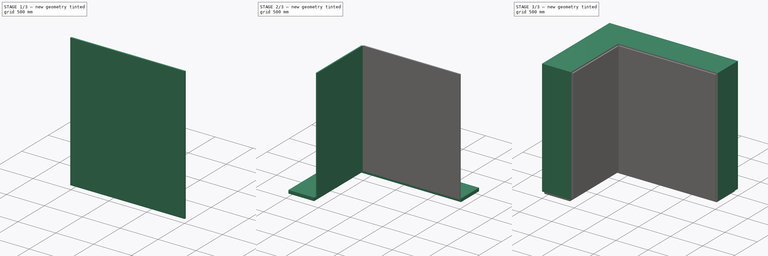
[diagram: build sequence overview — one tinted view per stage of 3, left to right]
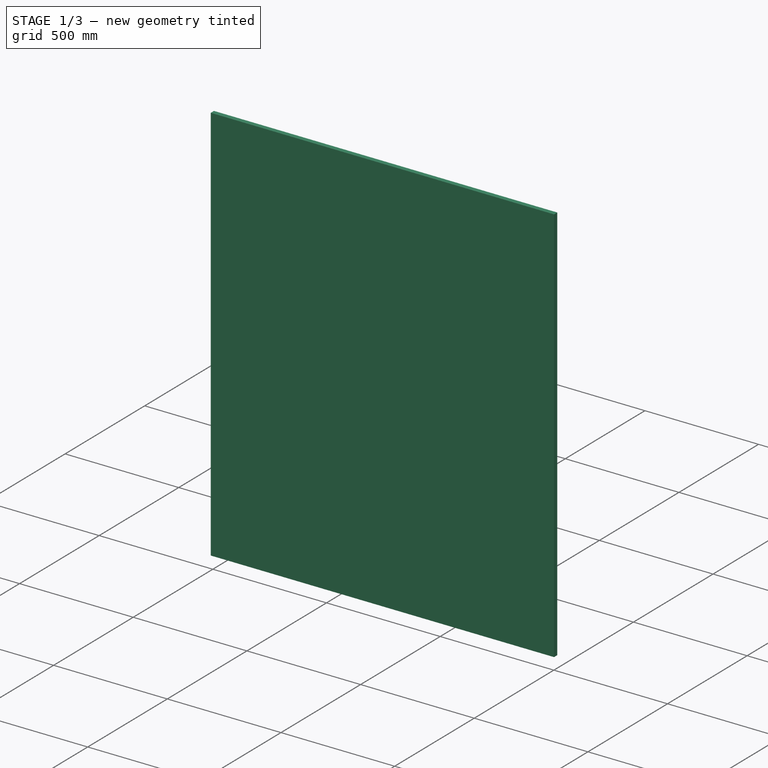
[diagram: stage 1 of 3 — iso view after this stage's code; geometry added in this stage tinted green]
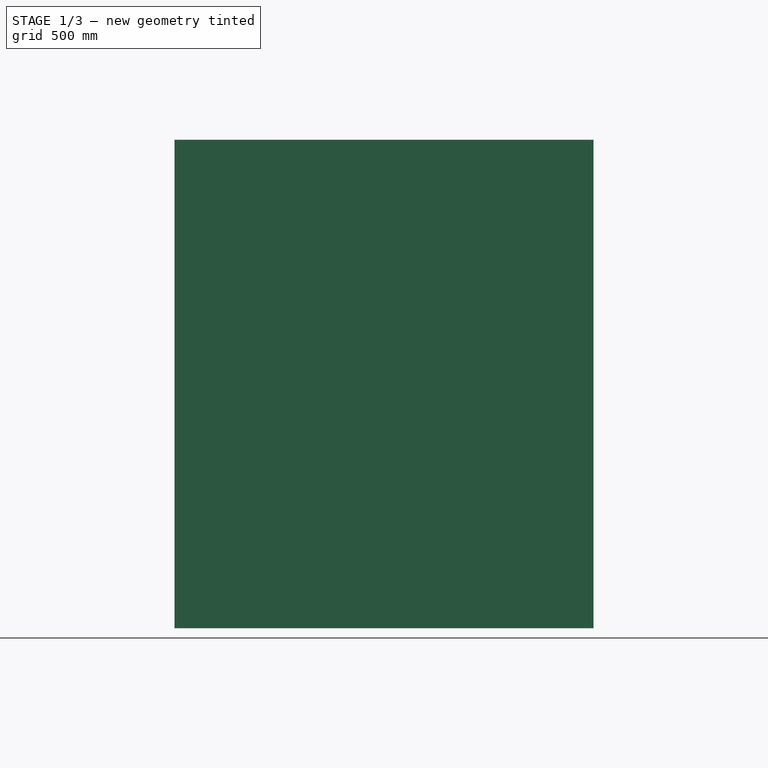
[diagram: stage 1 of 3 — front view after this stage's code; geometry added in this stage tinted green]
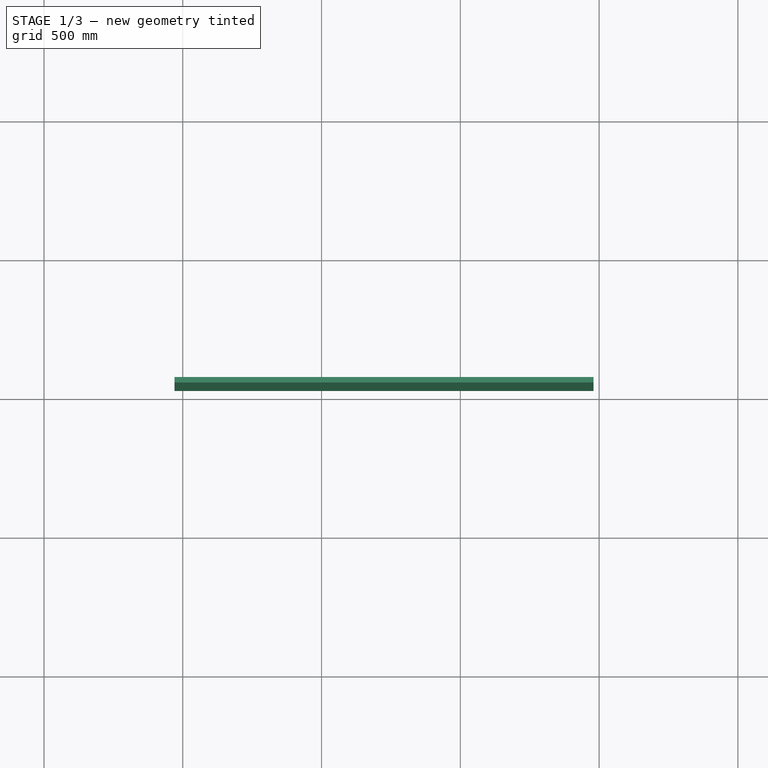
[diagram: stage 1 of 3 — top view after this stage's code; geometry added in this stage tinted green]
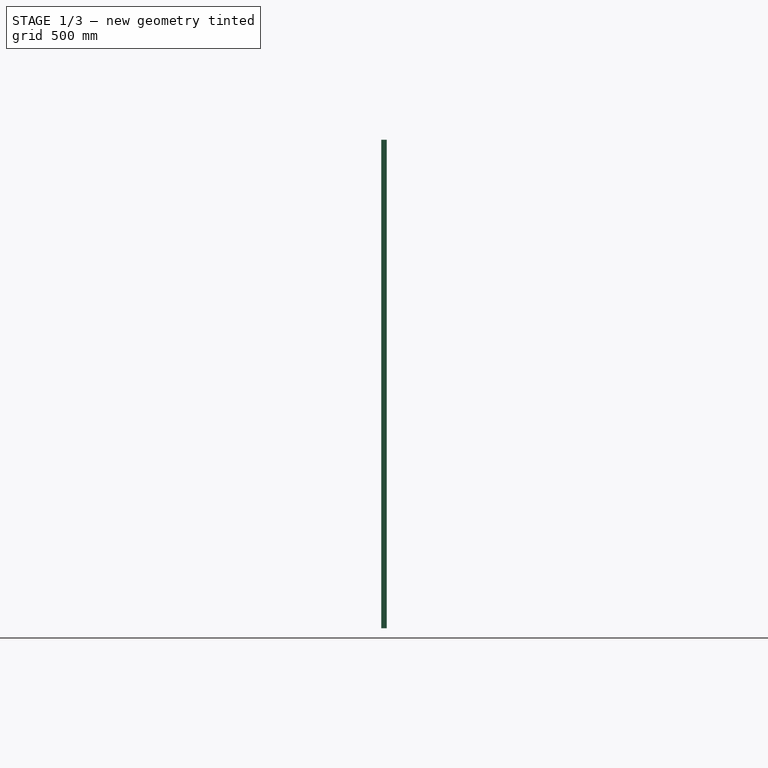
[diagram: stage 1 of 3 — right view after this stage's code; geometry added in this stage tinted green]
FCSTD DOCUMENT  (FreeCAD 0.21R33668 +26 (Git))
Label: Armário em L
License: All rights reserved
objects: Sketcher::SketchObject×4, Part::Extrusion×4, Part::FeaturePython×3, Part::Compound×1
note: 12 computed .brp shape members not serialized (recipe doc carries the construction recipe); baked Part::Feature solids carry a one-line shape summary decoded from their .brp

FEATURE [Sketcher::SketchObject] Sketch003
  FullyConstrained = true
  expr: Constraints[10] = (<<Propriedades - Armário>>.Comprimento_2 - <<Propriedades - Armário>>.Profundidade_1 - 4 cm) / <<Propriedades - Armário>>.NumPortas_2
  sketch-geometry (4):
    g0: LineSegment StartX=0 StartY=0 StartZ=0 EndX=503.333 EndY=0 EndZ=0
    g1: LineSegment StartX=503.333 StartY=0 StartZ=0 EndX=503.333 EndY=20 EndZ=0
    g2: LineSegment StartX=503.333 StartY=20 StartZ=0 EndX=0 EndY=20 EndZ=0
    g3: LineSegment StartX=0 StartY=20 StartZ=0 EndX=0 EndY=0 EndZ=0
  constraints (11):
    c: Coincident(g0,g1)
    c: Coincident(g1,g2)
    c: Coincident(g2,g3)
    c: Coincident(g3,g0)
    c: Horizontal(g0)
    c: Horizontal(g2)
    c: Vertical(g1)
    c: Vertical(g3)
    c: Coincident(g0,g-1)
    c: DistanceY(g1,g1) = 20
    c: DistanceX(g2,g2) = 503.333
FEATURE [Part::Extrusion] Extrude003
  Base = -> Sketch003
  Dir = (0,0,1)
  DirMode = 2
  FaceMakerClass = Part::FaceMakerBullseye
  LengthFwd = 1760
  LengthRev = 0
  Solid = true
  Symmetric = false
  expr: LengthFwd = <<Propriedades - Armário>>.Altura - 4 cm
FEATURE [Part::FeaturePython] Array001  label="Portas 001"  # Draft array (typed FeaturePython)
  Angle = 360
  ArrayType = 0
  Axis = (0,0,1)
  Base = -> Extrude003
  Center = (0,0,0)
  Count = 3
  Fuse = false
  IntervalAxis = (0,0,0)
  IntervalX = (503.333,0,0)
  IntervalY = (0,100,0)
  IntervalZ = (0,0,100)
  NumberCircles = 3
  NumberPolar = 5
  NumberX = 3
  NumberY = 1
  NumberZ = 1
  Placement = pos=(470,1030,70) rot=(0,0,1;0rad)
  RadialDistance = 50
  Symmetry = 1
  TangentialDistance = 25
  expr: .IntervalX.x = (<<Propriedades - Armário>>.Comprimento_2 - <<Propriedades - Armário>>.Profundidade_1 - 4 cm) / <<Propriedades - Armário>>.NumPortas_2
  expr: .Placement.Base.x = <<Propriedades - Armário>>.Profundidade_1 + 2 cm
  expr: .Placement.Base.y = <<Propriedades - Armário>>.Comprimento_1 - <<Propriedades - Armário>>.Profundidade_2 - 2 cm
  expr: .Placement.Base.z = <<Propriedades - Armário>>.AlturaBase + 2 cm
  expr: NumberX = <<Propriedades - Armário>>.NumPortas_2
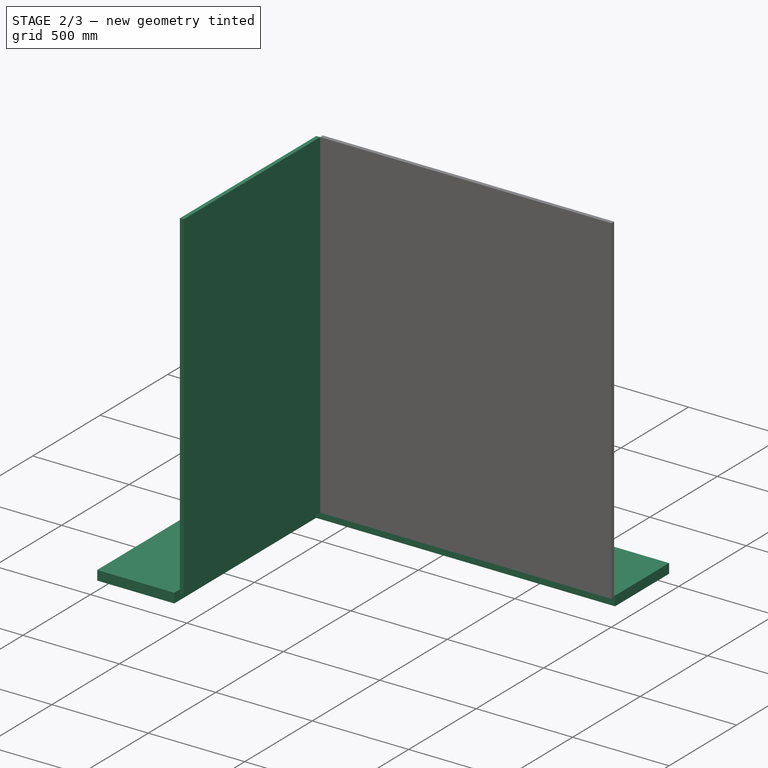
[diagram: stage 2 of 3 — iso view after this stage's code; geometry added in this stage tinted green]
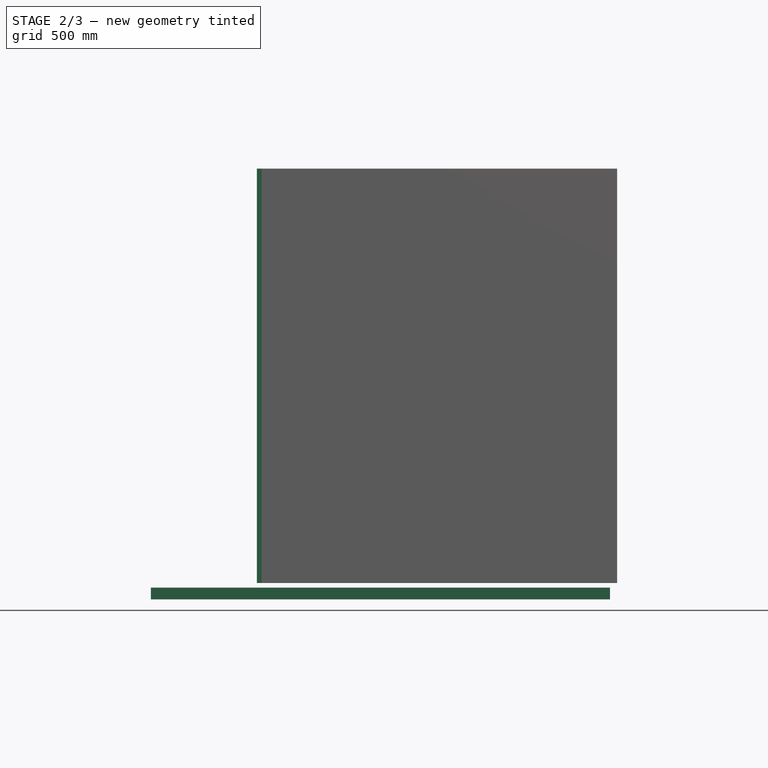
[diagram: stage 2 of 3 — front view after this stage's code; geometry added in this stage tinted green]
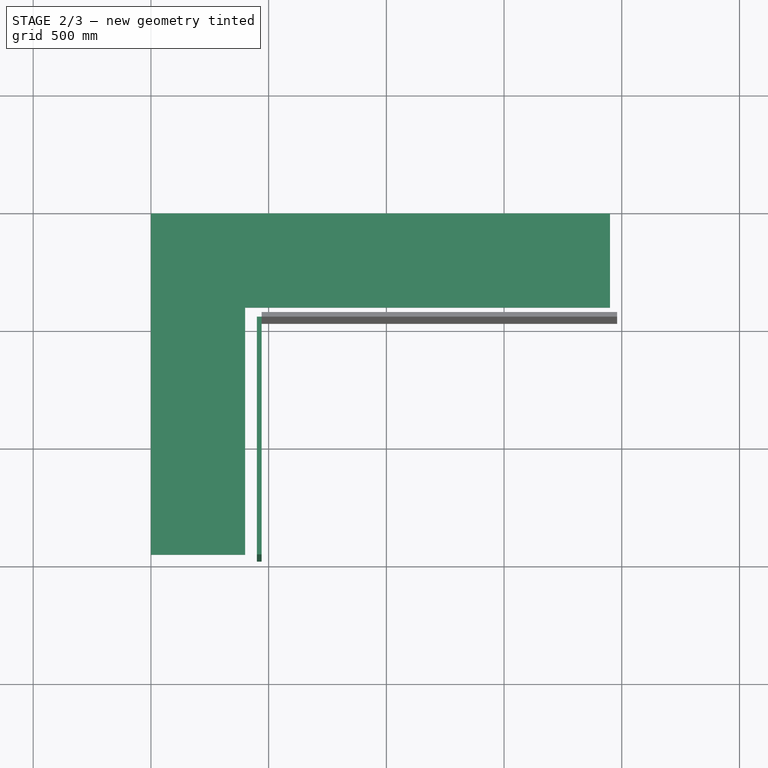
[diagram: stage 2 of 3 — top view after this stage's code; geometry added in this stage tinted green]
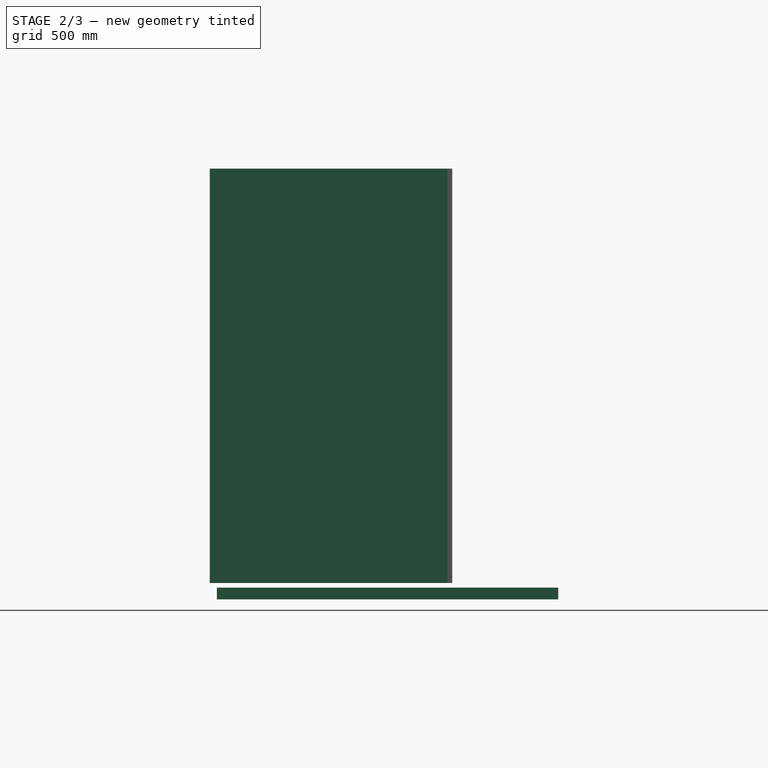
[diagram: stage 2 of 3 — right view after this stage's code; geometry added in this stage tinted green]
FEATURE [Sketcher::SketchObject] Sketch001
  FullyConstrained = true
  expr: Constraints[13] = <<Propriedades - Armário>>.Comprimento_1 - 5 cm
  expr: Constraints[14] = <<Propriedades - Armário>>.Profundidade_1 - 5 cm
  expr: Constraints[15] = <<Propriedades - Armário>>.Comprimento_2 - 5 cm
  expr: Constraints[16] = <<Propriedades - Armário>>.Profundidade_2 - 5 cm
  sketch-geometry (6):
    g0: LineSegment StartX=0 StartY=0 StartZ=0 EndX=0 EndY=1450 EndZ=0
    g1: LineSegment StartX=0 StartY=1450 StartZ=0 EndX=1950 EndY=1450 EndZ=0
    g2: LineSegment StartX=1950 StartY=1450 StartZ=0 EndX=1950 EndY=1050 EndZ=0
    g3: LineSegment StartX=1950 StartY=1050 StartZ=0 EndX=400 EndY=1050 EndZ=0
    g4: LineSegment StartX=400 StartY=1050 StartZ=0 EndX=400 EndY=0 EndZ=0
    g5: LineSegment StartX=400 StartY=0 StartZ=0 EndX=0 EndY=0 EndZ=0
  constraints (17):
    c: Coincident(g0,g-1)
    c: Vertical(g0)
    c: Coincident(g1,g0)
    c: Horizontal(g1)
    c: Coincident(g2,g1)
    c: Vertical(g2)
    c: Coincident(g3,g2)
    c: Horizontal(g3)
    c: Coincident(g4,g3)
    c: PointOnObject(g4,g-1)
    c: Vertical(g4)
    c: Coincident(g5,g4)
    c: Coincident(g5,g0)
    c: DistanceY(g0,g0) = 1450
    c: DistanceX(g5,g5) = 400
    c: DistanceX(g1,g1) = 1950
    c: DistanceY(g2,g2) = 400
FEATURE [Part::Extrusion] Extrude001  label="Base"
  Base = -> Sketch001
  Dir = (0,0,1)
  DirMode = 2
  FaceMakerClass = Part::FaceMakerBullseye
  LengthFwd = 50
  LengthRev = 0
  Placement = pos=(0,50,0) rot=(0,0,1;0rad)
  Solid = true
  Symmetric = false
  expr: LengthFwd = <<Propriedades - Armário>>.AlturaBase
FEATURE [Sketcher::SketchObject] Sketch002
  FullyConstrained = true
  expr: Constraints[9] = (<<Propriedades - Armário>>.Comprimento_1 - <<Propriedades - Armário>>.Profundidade_2 - 4 cm) / <<Propriedades - Armário>>.NumPortas_1
  sketch-geometry (4):
    g0: LineSegment StartX=0 StartY=0 StartZ=0 EndX=20 EndY=0 EndZ=0
    g1: LineSegment StartX=20 StartY=0 StartZ=0 EndX=20 EndY=505 EndZ=0
    g2: LineSegment StartX=20 StartY=505 StartZ=0 EndX=0 EndY=505 EndZ=0
    g3: LineSegment StartX=0 StartY=505 StartZ=0 EndX=0 EndY=0 EndZ=0
  constraints (11):
    c: Coincident(g0,g1)
    c: Coincident(g1,g2)
    c: Coincident(g2,g3)
    c: Coincident(g3,g0)
    c: Horizontal(g0)
    c: Horizontal(g2)
    c: Vertical(g1)
    c: Vertical(g3)
    c: Coincident(g0,g-1)
    c: DistanceY(g3,g3) = 505
    c: DistanceX(g2,g2) = 20
FEATURE [Part::Extrusion] Extrude002
  Base = -> Sketch002
  Dir = (0,0,1)
  DirMode = 2
  FaceMakerClass = Part::FaceMakerBullseye
  LengthFwd = 1760
  LengthRev = 0
  Solid = true
  Symmetric = false
  expr: LengthFwd = <<Propriedades - Armário>>.Altura - 4 cm
FEATURE [Part::FeaturePython] Array  label="Portas "  # Draft array (typed FeaturePython)
  Angle = 360
  ArrayType = 0
  Axis = (0,0,1)
  Base = -> Extrude002
  Center = (0,0,0)
  Count = 2
  Fuse = false
  IntervalAxis = (0,0,0)
  IntervalX = (100,0,0)
  IntervalY = (0,505,0)
  IntervalZ = (0,0,100)
  NumberCircles = 3
  NumberPolar = 5
  NumberX = 1
  NumberY = 2
  NumberZ = 1
  Placement = pos=(450,20,70) rot=(0,0,1;0rad)
  RadialDistance = 50
  Symmetry = 1
  TangentialDistance = 25
  expr: .IntervalY.y = (<<Propriedades - Armário>>.Comprimento_1 - <<Propriedades - Armário>>.Profundidade_2 - 4 cm) / <<Propriedades - Armário>>.NumPortas_1
  expr: .Placement.Base.x = <<Propriedades - Armário>>.Profundidade_1
  expr: .Placement.Base.z = <<Propriedades - Armário>>.AlturaBase + 2 cm
  expr: NumberY = <<Propriedades - Armário>>.NumPortas_1
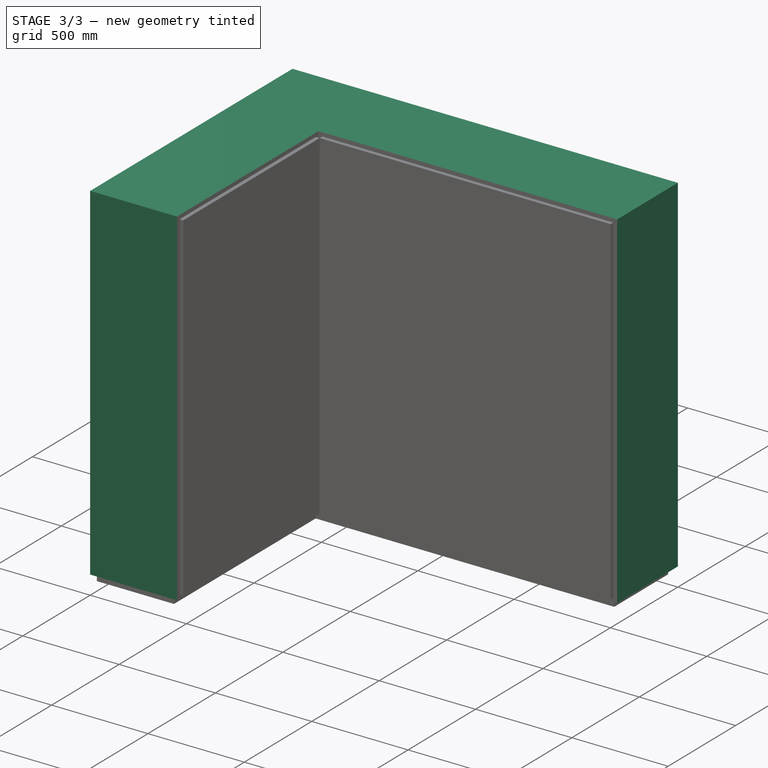
[diagram: stage 3 of 3 — iso view after this stage's code; geometry added in this stage tinted green]
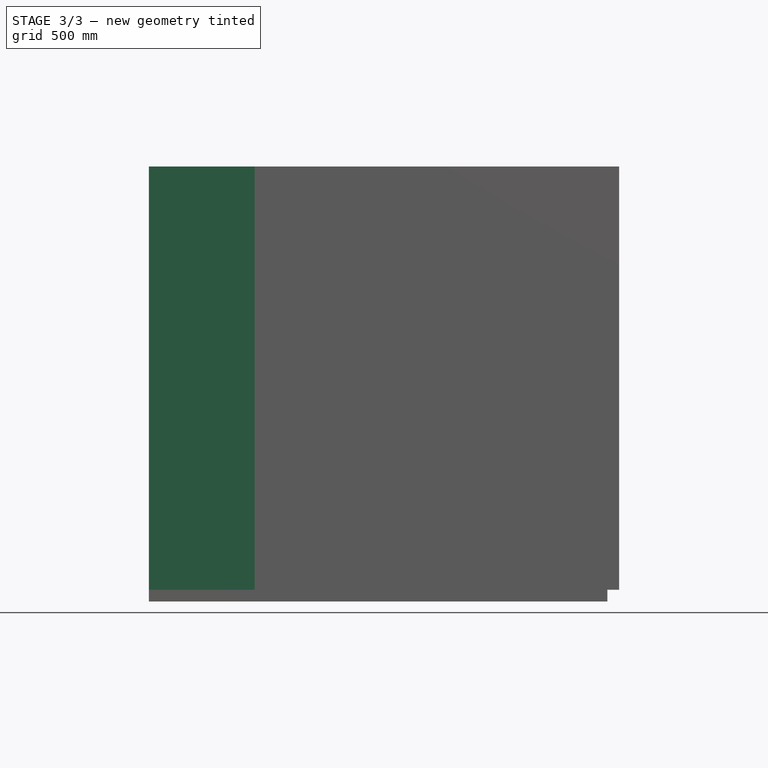
[diagram: stage 3 of 3 — front view after this stage's code; geometry added in this stage tinted green]
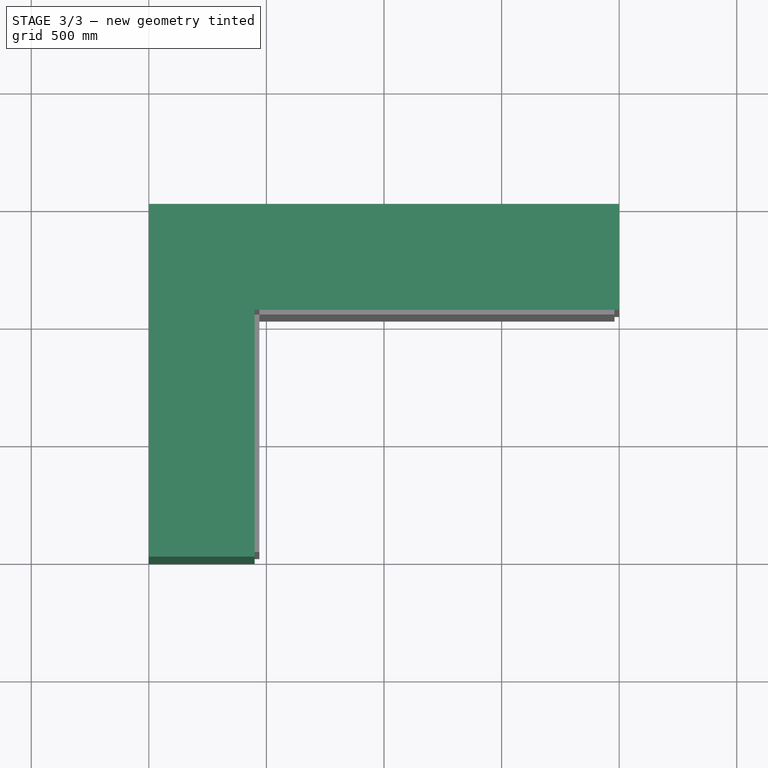
[diagram: stage 3 of 3 — top view after this stage's code; geometry added in this stage tinted green]
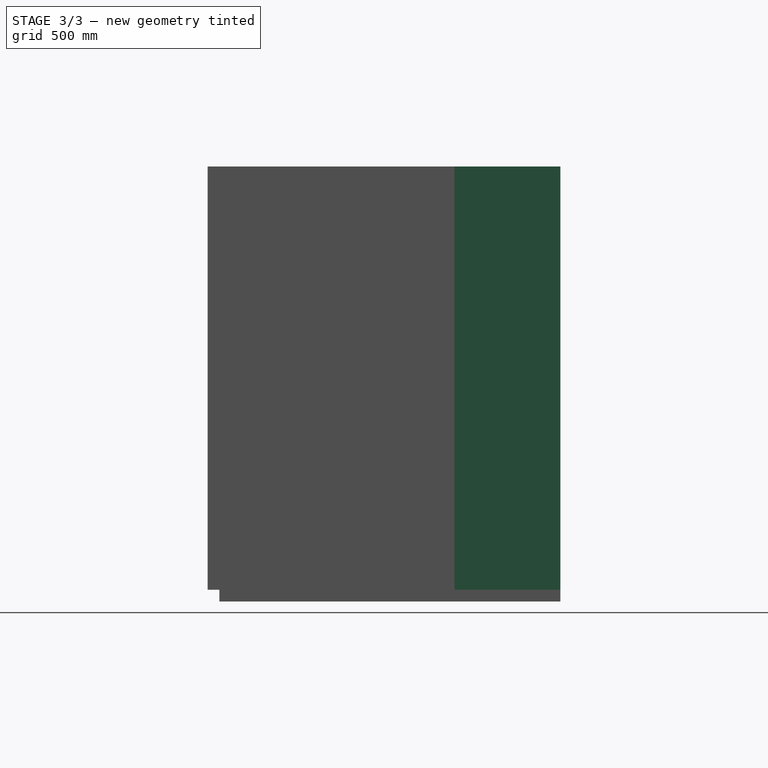
[diagram: stage 3 of 3 — right view after this stage's code; geometry added in this stage tinted green]
FEATURE [Part::FeaturePython] Point  label="Propriedades - Armário"  # WARN: FeaturePython — macro-defined, semantics opaque (R4)
  Altura = 1800
  AlturaBase = 50
  Comprimento_1 = 1500
  Comprimento_2 = 2000
  NumPortas_1 = 2
  NumPortas_2 = 3
  Profundidade_1 = 450
  Profundidade_2 = 450
  X = 0
  Y = 0
  Z = 0
FEATURE [Sketcher::SketchObject] Sketch
  FullyConstrained = true
  expr: Constraints[13] = <<Propriedades - Armário>>.Comprimento_1
  expr: Constraints[14] = <<Propriedades - Armário>>.Profundidade_1
  expr: Constraints[15] = <<Propriedades - Armário>>.Comprimento_2
  expr: Constraints[16] = <<Propriedades - Armário>>.Profundidade_2
  sketch-geometry (6):
    g0: LineSegment StartX=0 StartY=0 StartZ=0 EndX=0 EndY=1500 EndZ=0
    g1: LineSegment StartX=0 StartY=1500 StartZ=0 EndX=2000 EndY=1500 EndZ=0
    g2: LineSegment StartX=2000 StartY=1500 StartZ=0 EndX=2000 EndY=1050 EndZ=0
    g3: LineSegment StartX=2000 StartY=1050 StartZ=0 EndX=450 EndY=1050 EndZ=0
    g4: LineSegment StartX=450 StartY=1050 StartZ=0 EndX=450 EndY=0 EndZ=0
    g5: LineSegment StartX=450 StartY=0 StartZ=0 EndX=0 EndY=0 EndZ=0
  constraints (17):
    c: Coincident(g0,g-1)
    c: Vertical(g0)
    c: Coincident(g1,g0)
    c: Horizontal(g1)
    c: Coincident(g2,g1)
    c: Vertical(g2)
    c: Coincident(g3,g2)
    c: Horizontal(g3)
    c: Coincident(g4,g3)
    c: PointOnObject(g4,g-1)
    c: Vertical(g4)
    c: Coincident(g5,g4)
    c: Coincident(g5,g0)
    c: DistanceY(g0,g0) = 1500
    c: DistanceX(g5,g5) = 450
    c: DistanceX(g1,g1) = 2000
    c: DistanceY(g2,g2) = 450
FEATURE [Part::Extrusion] Extrude  label="Corpo"
  Base = -> Sketch
  Dir = (0,0,1)
  DirMode = 2
  FaceMakerClass = Part::FaceMakerBullseye
  LengthFwd = 1800
  LengthRev = 0
  Placement = pos=(0,0,50) rot=(0,0,1;0rad)
  Solid = true
  Symmetric = false
  expr: .Placement.Base.z = <<Propriedades - Armário>>.AlturaBase
  expr: LengthFwd = <<Propriedades - Armário>>.Altura
FEATURE [Part::Compound] Compound  label="Armário"
  Links = -> [Point,Extrude,Extrude001,Array,Array001]
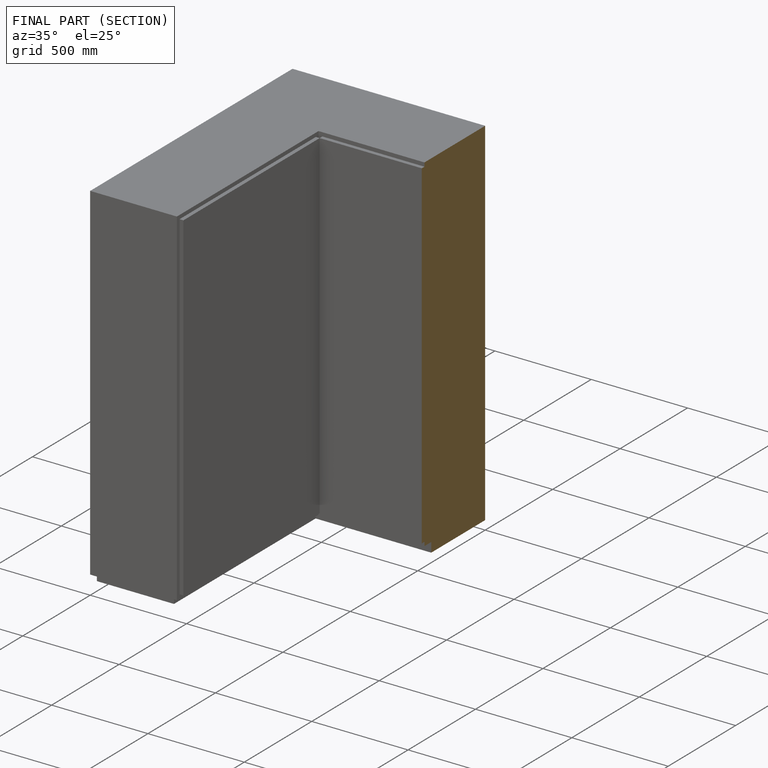
[diagram: finished part — half-section view (interior)]
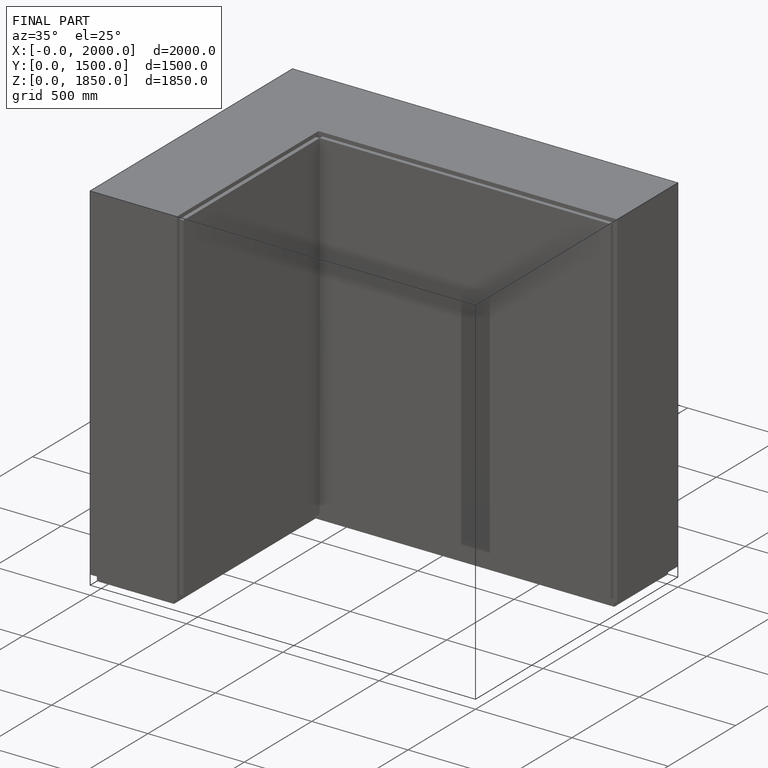
[diagram: finished part — iso view with bounding-box wireframe]
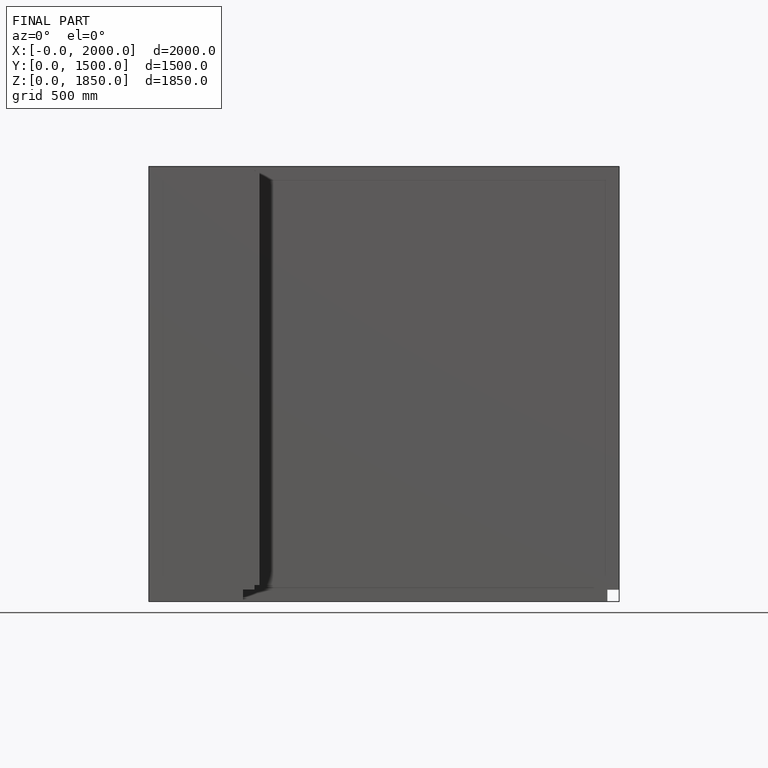
[diagram: finished part — front view with bounding-box wireframe]
